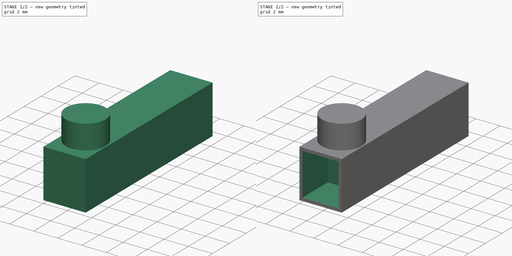
[diagram: build sequence overview — one tinted view per stage of 2, left to right]
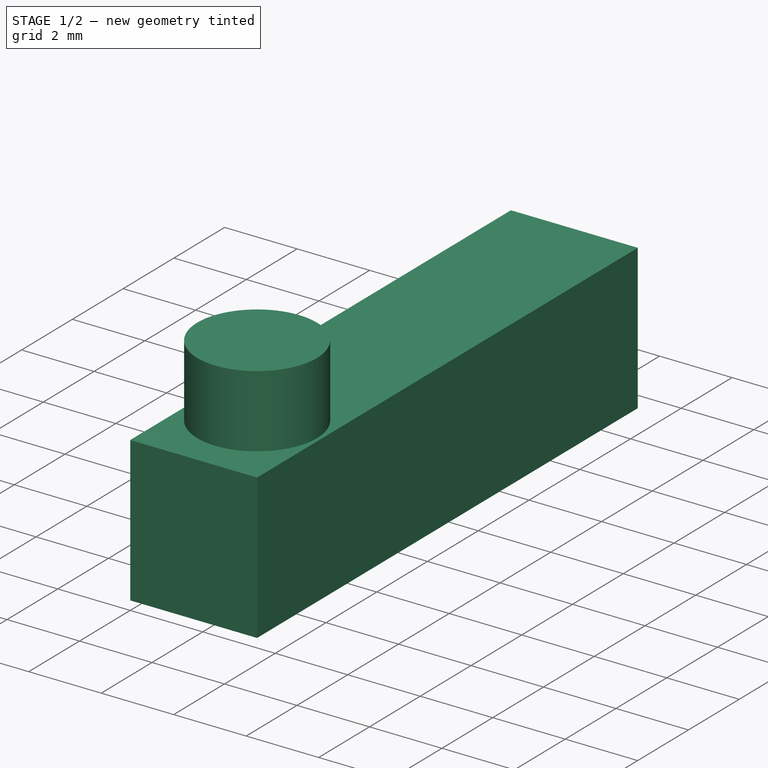
[diagram: stage 1 of 2 — iso view after this stage's code; geometry added in this stage tinted green]
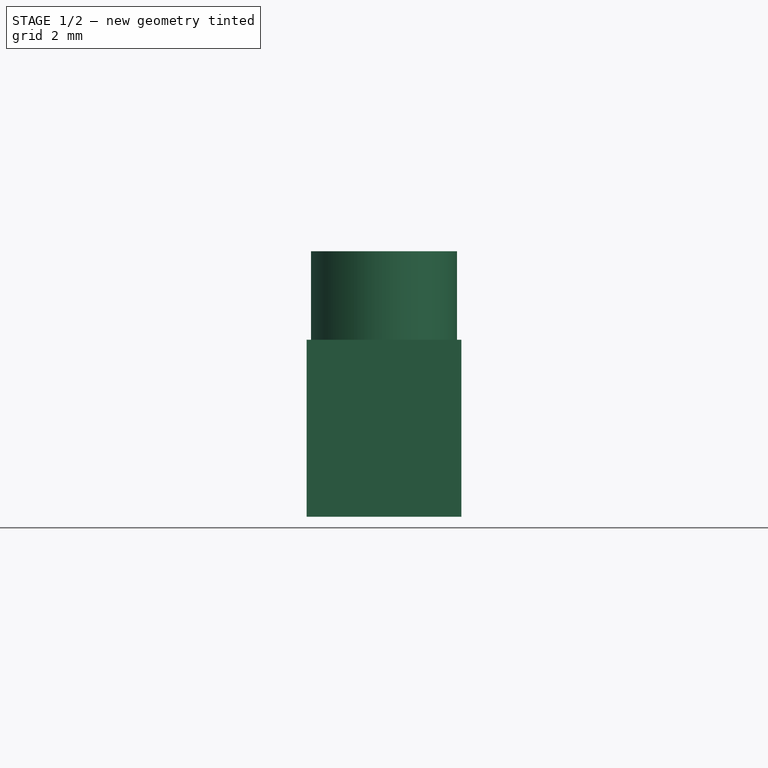
[diagram: stage 1 of 2 — front view after this stage's code; geometry added in this stage tinted green]
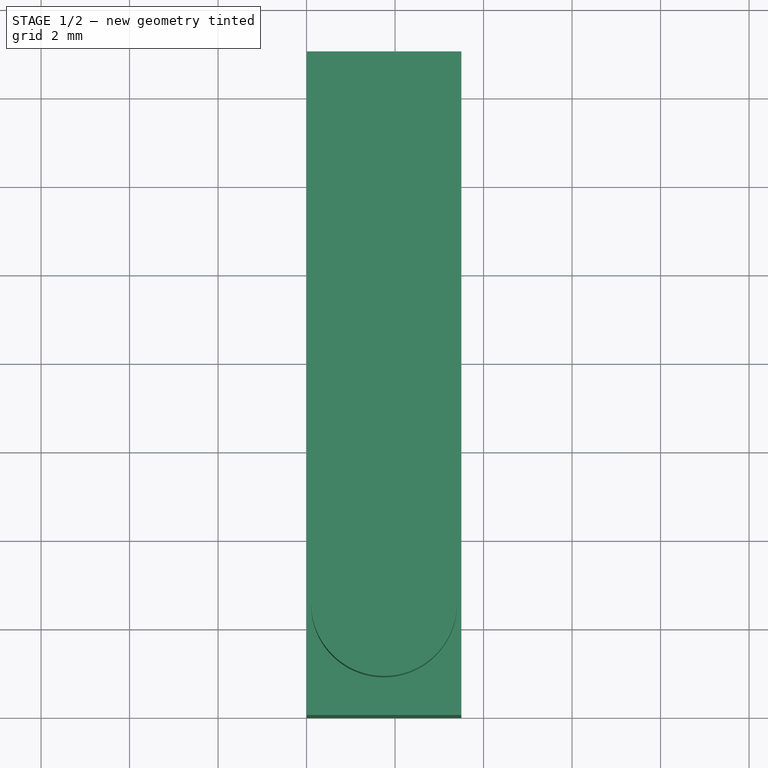
[diagram: stage 1 of 2 — top view after this stage's code; geometry added in this stage tinted green]
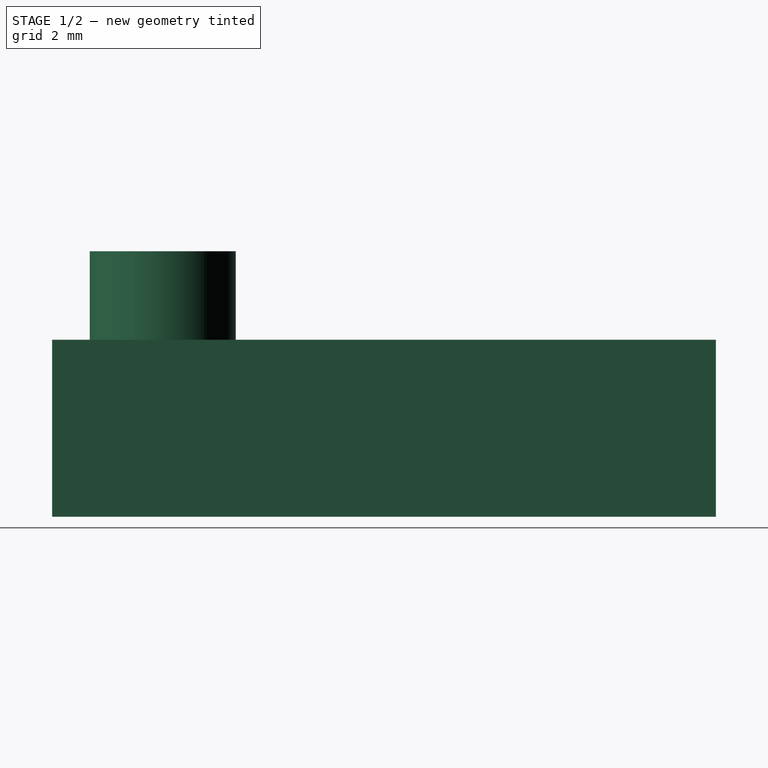
[diagram: stage 1 of 2 — right view after this stage's code; geometry added in this stage tinted green]
FCSTD DOCUMENT  (FreeCAD 0.18R16131 (Git))
Label: pin
License: All rights reserved
LicenseURL: http://en.wikipedia.org/wiki/All_rights_reserved
objects: Sketcher::SketchObject×4, PartDesign::Pad×2, PartDesign::Pocket×2, PartDesign::Body×1
note: 13 computed .brp shape members not serialized (recipe doc carries the construction recipe); baked Part::Feature solids carry a one-line shape summary decoded from their .brp

FEATURE [Sketcher::SketchObject] Sketch
  MapMode = 5
  Support = -> [XY_Plane]
  sketch-geometry (4):
    g0: LineSegment StartX=0 StartY=0 StartZ=0 EndX=3.5 EndY=0 EndZ=0
    g1: LineSegment StartX=3.5 StartY=0 StartZ=0 EndX=3.5 EndY=15 EndZ=0
    g2: LineSegment StartX=3.5 StartY=15 StartZ=0 EndX=0 EndY=15 EndZ=0
    g3: LineSegment StartX=0 StartY=15 StartZ=0 EndX=0 EndY=0 EndZ=0
  constraints (11):
    c: Coincident(g0,g1)
    c: Coincident(g1,g2)
    c: Coincident(g2,g3)
    c: Coincident(g3,g0)
    c: Horizontal(g0)
    c: Horizontal(g2)
    c: Vertical(g1)
    c: Vertical(g3)
    c: Coincident(g0,g-1)
    c: DistanceX(g2,g2) = 3.5
    c: DistanceY(g1,g1) = 15
FEATURE [PartDesign::Pad] Pad
  Length = 4
  Length2 = 100
  Profile = -> Sketch
  Type = 0
FEATURE [Sketcher::SketchObject] Sketch001
  MapMode = 5
  Support = -> [XY_Plane]
  expr: Constraints[1] = 3.5 / 2
  sketch-geometry (1):
    g0: Circle CenterX=1.75 CenterY=2.5 CenterZ=0 NormalX=0 NormalY=0 NormalZ=1 AngleXU=0 Radius=1.65
  constraints (3):
    c: Radius(g0) = 1.65
    c: DistanceX(g-1,g0) = 1.75
    c: DistanceY(g-1,g0) = 2.5
FEATURE [PartDesign::Pad] Pad001
  BaseFeature = -> Pad
  Length = 6
  Length2 = 100
  Profile = -> Sketch001
  Type = 0
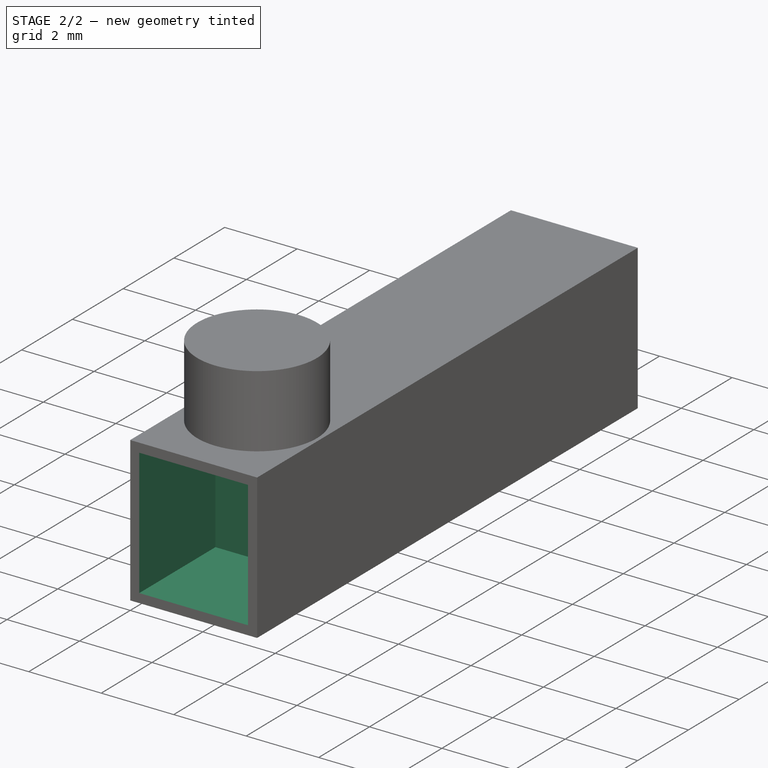
[diagram: stage 2 of 2 — iso view after this stage's code; geometry added in this stage tinted green]
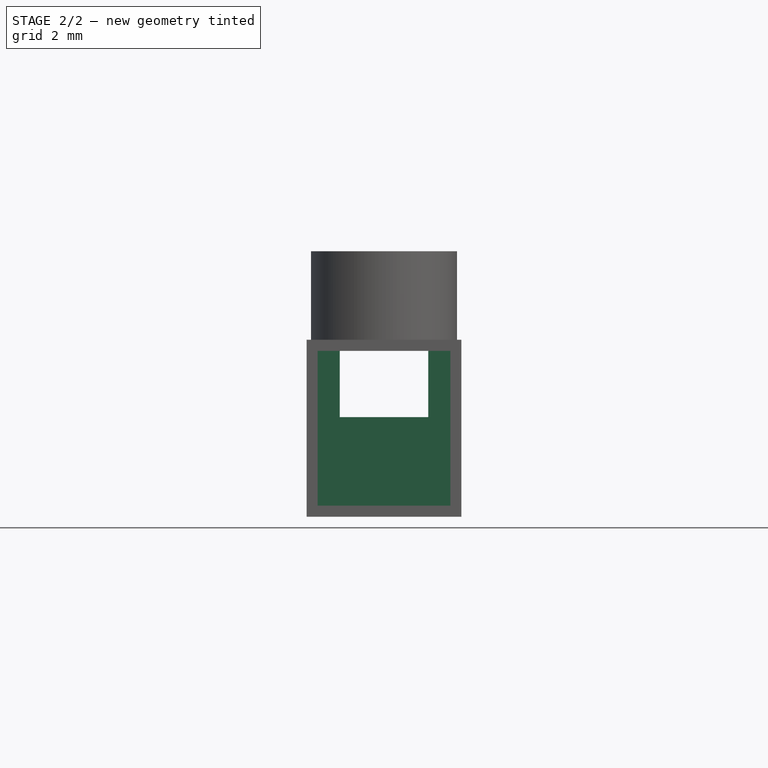
[diagram: stage 2 of 2 — front view after this stage's code; geometry added in this stage tinted green]
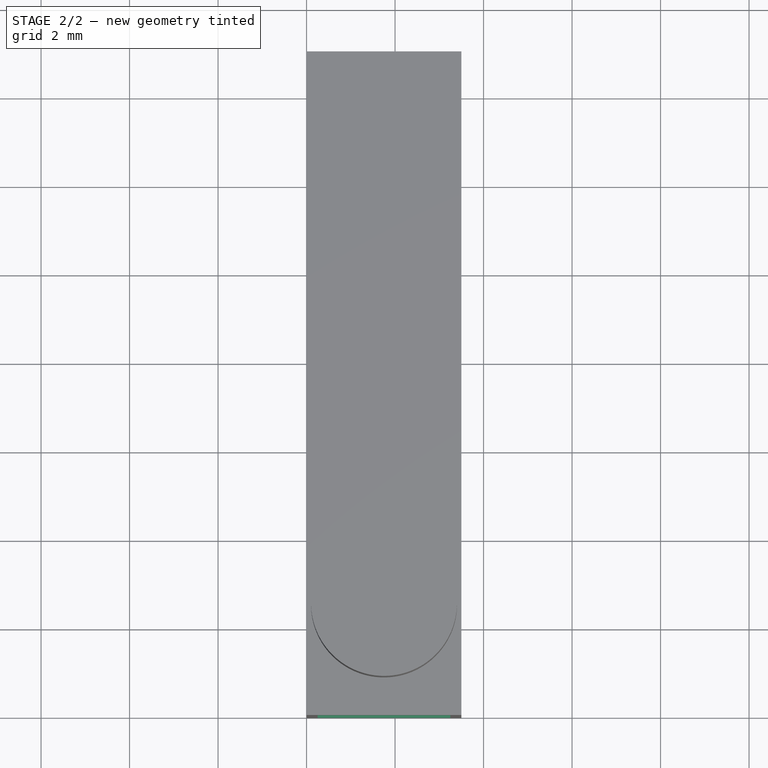
[diagram: stage 2 of 2 — top view after this stage's code; geometry added in this stage tinted green]
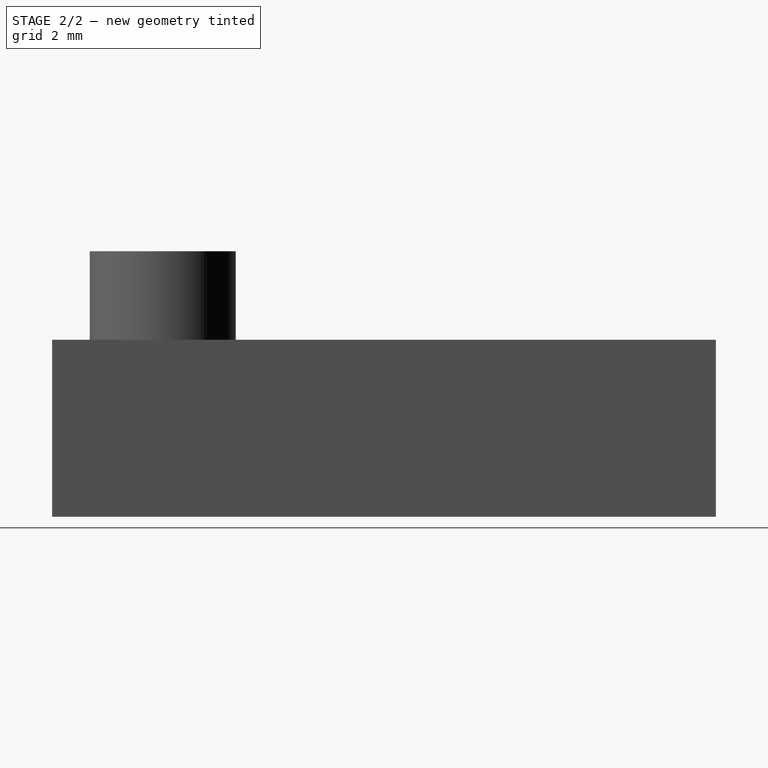
[diagram: stage 2 of 2 — right view after this stage's code; geometry added in this stage tinted green]
FEATURE [Sketcher::SketchObject] Sketch002
  MapMode = 5
  Placement = pos=(0,0,0) rot=(1,0,0;1.5708rad)
  Support = -> [Pad001]
  expr: Constraints[13] = 3.5 / 2
  sketch-geometry (5):
    g0: LineSegment StartX=3.25 StartY=3.75 StartZ=0 EndX=3.25 EndY=0.25 EndZ=0
    g1: LineSegment StartX=3.25 StartY=0.25 StartZ=0 EndX=0.25 EndY=0.25 EndZ=0
    g2: LineSegment StartX=0.25 StartY=0.25 StartZ=0 EndX=0.25 EndY=3.75 EndZ=0
    g3: LineSegment StartX=0.25 StartY=3.75 StartZ=0 EndX=1.75 EndY=3.75 EndZ=0
    g4: LineSegment StartX=1.75 StartY=3.75 StartZ=0 EndX=3.25 EndY=3.75 EndZ=0
  constraints (15):
    c: Coincident(g0,g1)
    c: Coincident(g1,g2)
    c: Horizontal(g1)
    c: Vertical(g0)
    c: Vertical(g2)
    c: Coincident(g2,g3)
    c: Horizontal(g3)
    c: Coincident(g3,g4)
    c: Coincident(g4,g0)
    c: Horizontal(g4)
    c: Equal(g4,g3)
    c: DistanceX(g1,g1) = 3
    c: DistanceY(g0,g0) = 3.5
    c: DistanceX(g-1,g3) = 1.75
    c: DistanceY(g-1,g3) = 3.75
FEATURE [Sketcher::SketchObject] Sketch003
  MapMode = 5
  Placement = pos=(0,0,0) rot=(1,0,0;1.5708rad)
  expr: Constraints[13] = 3.5 / 2
  sketch-geometry (5):
    g0: LineSegment StartX=0.75 StartY=3.75 StartZ=0 EndX=1.75 EndY=3.75 EndZ=0
    g1: LineSegment StartX=1.75 StartY=3.75 StartZ=0 EndX=2.75 EndY=3.75 EndZ=0
    g2: LineSegment StartX=2.75 StartY=3.75 StartZ=0 EndX=2.75 EndY=2.25 EndZ=0
    g3: LineSegment StartX=2.75 StartY=2.25 StartZ=0 EndX=0.75 EndY=2.25 EndZ=0
    g4: LineSegment StartX=0.75 StartY=2.25 StartZ=0 EndX=0.75 EndY=3.75 EndZ=0
  constraints (15):
    c: Horizontal(g0)
    c: Coincident(g0,g1)
    c: Horizontal(g1)
    c: Coincident(g1,g2)
    c: Vertical(g2)
    c: Coincident(g2,g3)
    c: Horizontal(g3)
    c: Coincident(g3,g4)
    c: Coincident(g4,g0)
    c: Vertical(g4)
    c: Equal(g0,g1)
    c: DistanceX(g3,g3) = 2
    c: DistanceY(g2,g2) = 1.5
    c: DistanceX(g-1,g0) = 1.75
    c: DistanceY(g-1,g0) = 3.75
FEATURE [PartDesign::Pocket] Pocket
  BaseFeature = -> Pad001
  Length = 3
  Length2 = 100
  Profile = -> Sketch002
  Type = 0
FEATURE [PartDesign::Pocket] Pocket001
  BaseFeature = -> Pocket
  Length = 5
  Length2 = 100
  Profile = -> Sketch003
  Type = 1
FEATURE [PartDesign::Body] Body
  Group = -> [Sketch,Pad,Sketch001,Pad001,Sketch002,Sketch003,Pocket,Pocket001]
  Origin = -> Origin
  Tip = -> Pocket001
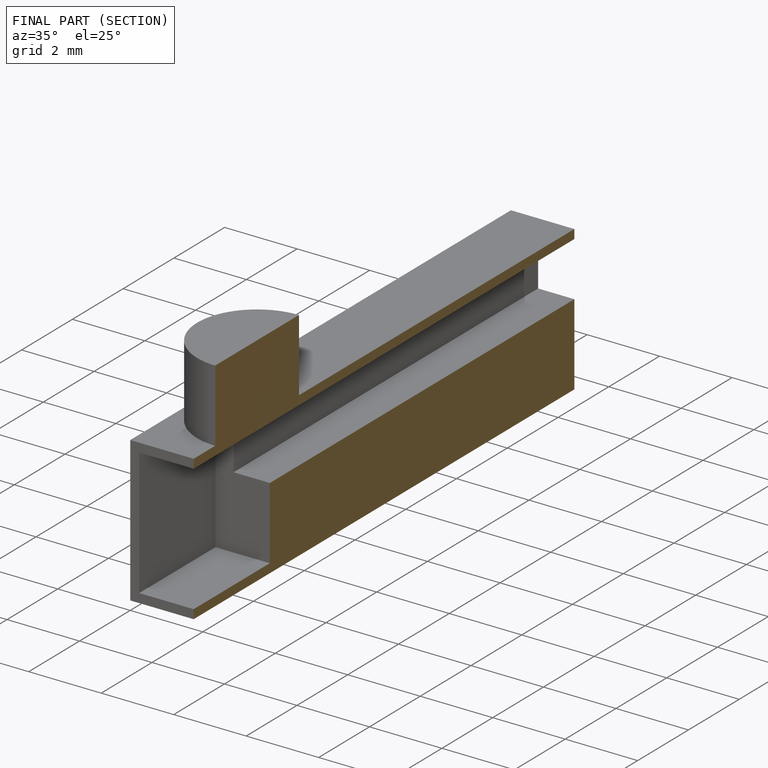
[diagram: finished part — half-section view (interior)]
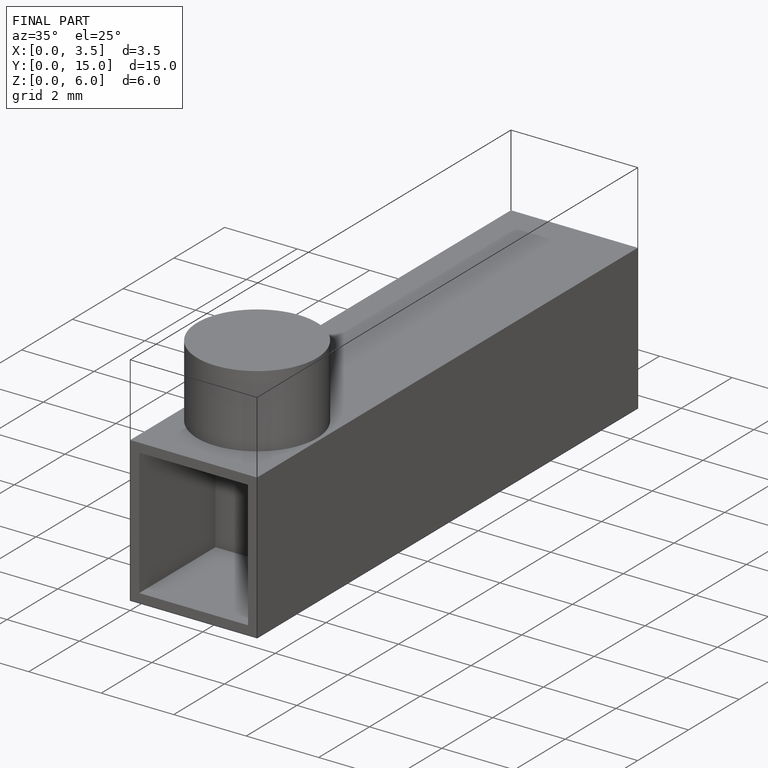
[diagram: finished part — iso view with bounding-box wireframe]
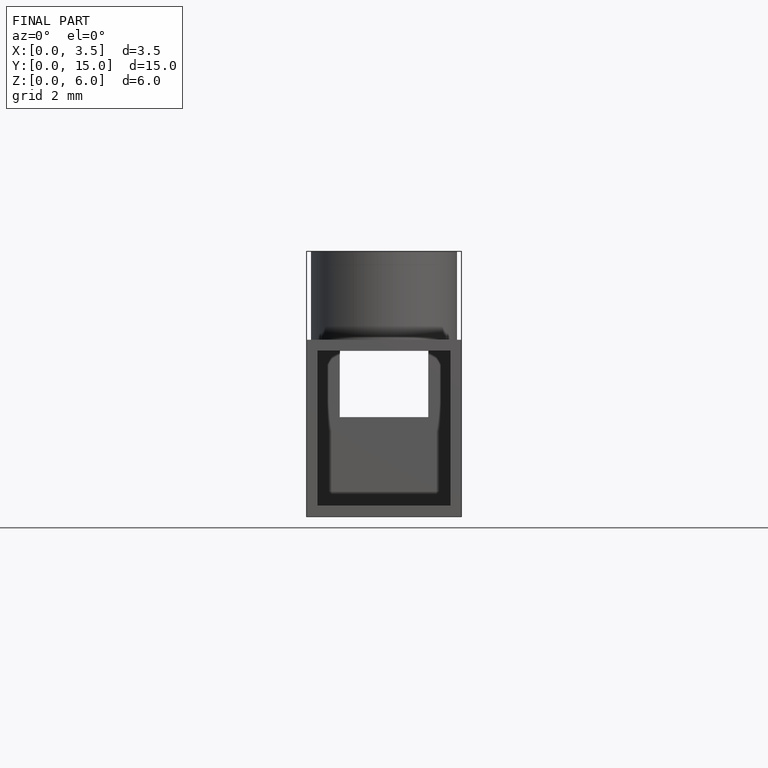
[diagram: finished part — front view with bounding-box wireframe]
